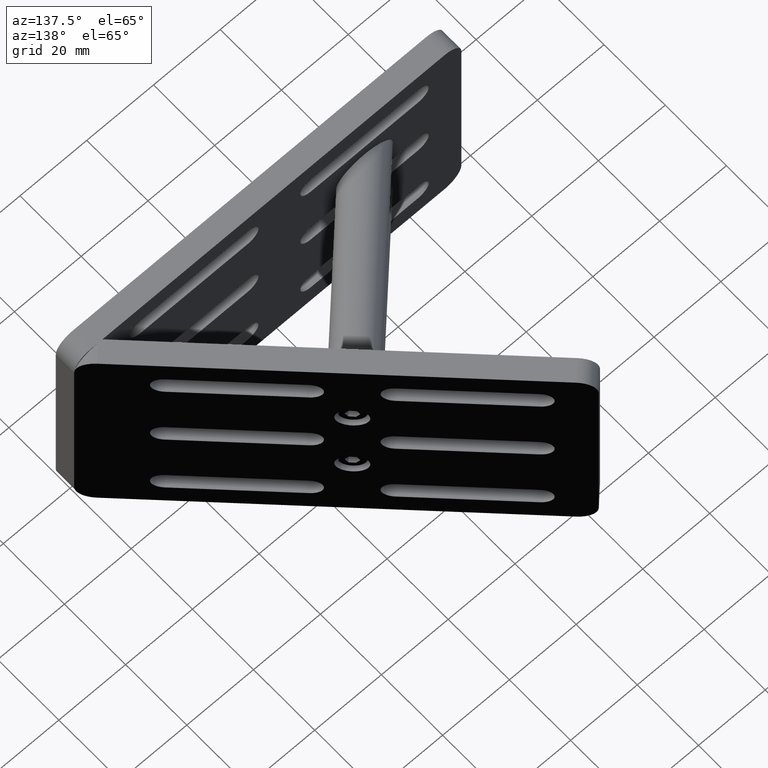
[diagram: clean part render]
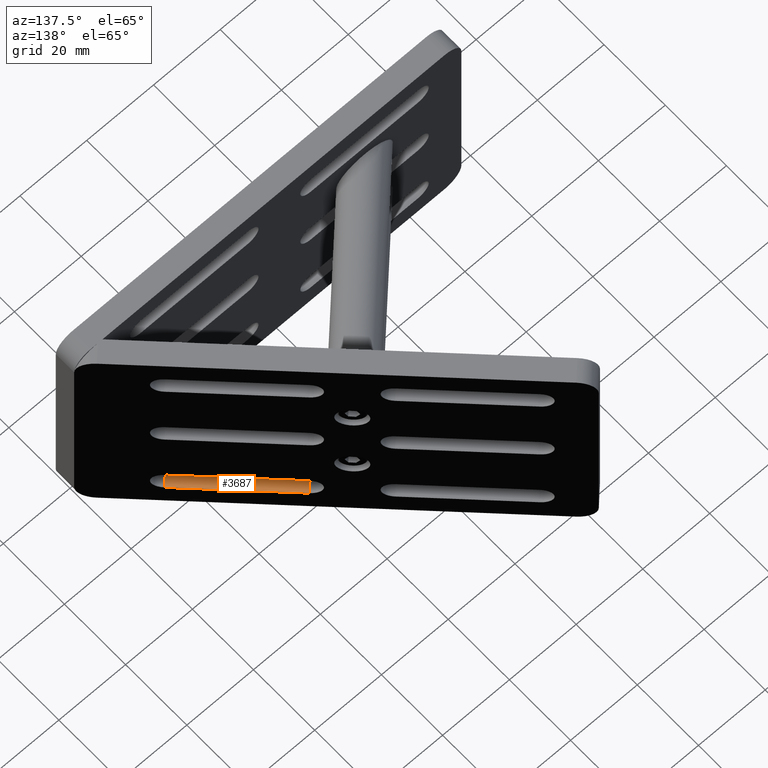
[diagram: same view with one face highlighted and labeled with its STEP entity id]
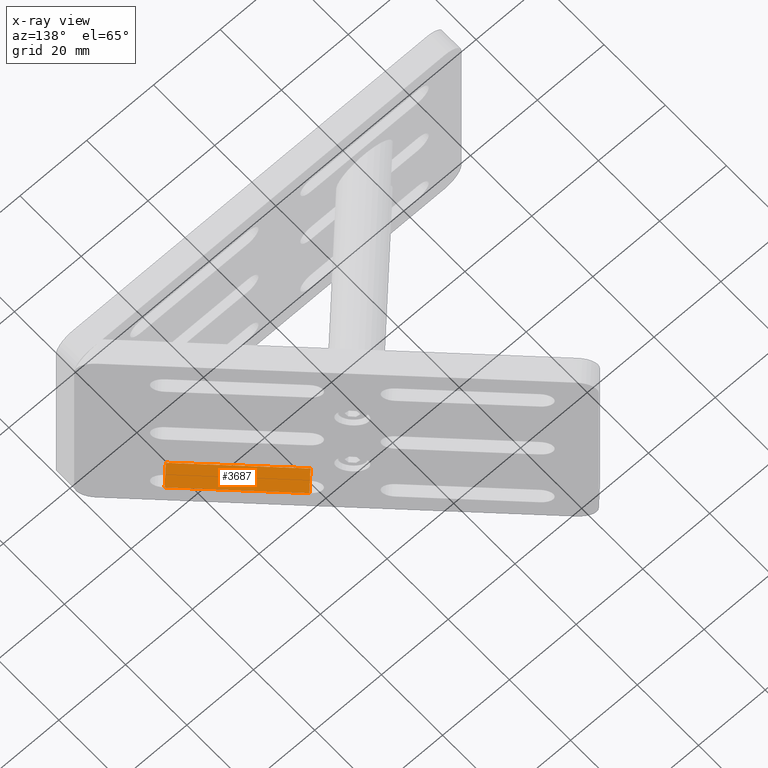
[diagram: x-ray of the same camera — body ghosted, the highlighted face saturated]
A machine part, auxiliary view. The second image highlights one B-rep face of the part: STEP entity #3687.
The next image is the same camera in x-ray: the body ghosted, the highlighted face saturated — about 0% of this face is hidden behind the body in this view.
In plain terms, the highlighted planar face has unit normal (0, -0, -1).
Its self-contained STEP definition (entity closure, byte-faithful):
#540 = CARTESIAN_POINT ( 'NONE',  ( 20.48780669117951100, 35.52691193458196000, -28.25000000000044400 ) ) ;
#944 = DIRECTION ( 'NONE',  ( 0.7071067811865463500, -0.7071067811865486800, 1.632930537312297000E-015 ) ) ;
#986 = VERTEX_POINT ( 'NONE', #2855 ) ;
#1434 = CARTESIAN_POINT ( 'NONE',  ( 43.11522368914901200, 12.89949493661241000, -28.25000000000043300 ) ) ;
#2382 = LINE ( 'NONE', #5783, #5370 ) ;
#2541 = CARTESIAN_POINT ( 'NONE',  ( 47.35786437626831000, 17.14213562373169400, -28.25000000000043300 ) ) ;
#2680 = LINE ( 'NONE', #5191, #4823 ) ;
#2855 = CARTESIAN_POINT ( 'NONE',  ( 24.73044737829880900, 39.76955262170124400, -28.25000000000050100 ) ) ;
#2884 = EDGE_CURVE ( 'NONE', #986, #7056, #2382, .T. ) ;
#3219 = CARTESIAN_POINT ( 'NONE',  ( 69.98528137423805600, 85.02438661764033200, -28.25000000000049000 ) ) ;
#3311 = DIRECTION ( 'NONE',  ( 0.7071067811865463500, -0.7071067811865486800, 1.632930537312297000E-015 ) ) ;
#3355 = ORIENTED_EDGE ( 'NONE', *, *, #4824, .F. ) ;
#3461 = VERTEX_POINT ( 'NONE', #1434 ) ;
#3687 = ADVANCED_FACE ( 'NONE', ( #4598 ), #5944, .F. ) ;
#3691 = ORIENTED_EDGE ( 'NONE', *, *, #5075, .T. ) ;
#3831 = AXIS2_PLACEMENT_3D ( 'NONE', #3219, #4244, #944 ) ;
#3861 = VECTOR ( 'NONE', #3311, 1000.000000000000100 ) ;
#4026 = LINE ( 'NONE', #540, #3861 ) ;
#4235 = ORIENTED_EDGE ( 'NONE', *, *, #2884, .F. ) ;
#4244 = DIRECTION ( 'NONE',  ( 1.283578274361125600E-015, -1.025734237919110800E-015, -1.000000000000000000 ) ) ;
#4366 = VERTEX_POINT ( 'NONE', #5062 ) ;
#4477 = EDGE_LOOP ( 'NONE', ( #3691, #5976, #3355, #4235 ) ) ;
#4504 = LINE ( 'NONE', #7123, #5522 ) ;
#4598 = FACE_OUTER_BOUND ( 'NONE', #4477, .T. ) ;
#4823 = VECTOR ( 'NONE', #6281, 1000.000000000000100 ) ;
#4824 = EDGE_CURVE ( 'NONE', #7056, #3461, #4504, .T. ) ;
#5062 = CARTESIAN_POINT ( 'NONE',  ( 20.48780669117951100, 35.52691193458196000, -28.25000000000044400 ) ) ;
#5075 = EDGE_CURVE ( 'NONE', #986, #4366, #2680, .T. ) ;
#5191 = CARTESIAN_POINT ( 'NONE',  ( 69.98528137423805600, 85.02438661764033200, -28.25000000000049000 ) ) ;
#5370 = VECTOR ( 'NONE', #6851, 1000.000000000000100 ) ;
#5522 = VECTOR ( 'NONE', #6614, 1000.000000000000100 ) ;
#5783 = CARTESIAN_POINT ( 'NONE',  ( 61.50000000000005700, 2.999999999999905400, -28.25000000000036900 ) ) ;
#5944 = PLANE ( 'NONE',  #3831 ) ;
#5976 = ORIENTED_EDGE ( 'NONE', *, *, #6197, .T. ) ;
#6197 = EDGE_CURVE ( 'NONE', #4366, #3461, #4026, .T. ) ;
#6281 = DIRECTION ( 'NONE',  ( -0.7071067811865486800, -0.7071067811865463500, 6.492429766214280900E-017 ) ) ;
#6614 = DIRECTION ( 'NONE',  ( -0.7071067811865486800, -0.7071067811865463500, 6.492429766214280900E-017 ) ) ;
#6851 = DIRECTION ( 'NONE',  ( 0.7071067811865463500, -0.7071067811865486800, 1.632930537312297000E-015 ) ) ;
#7056 = VERTEX_POINT ( 'NONE', #2541 ) ;
#7123 = CARTESIAN_POINT ( 'NONE',  ( 92.61269837220746100, 62.39696961967067800, -28.25000000000042300 ) ) ;